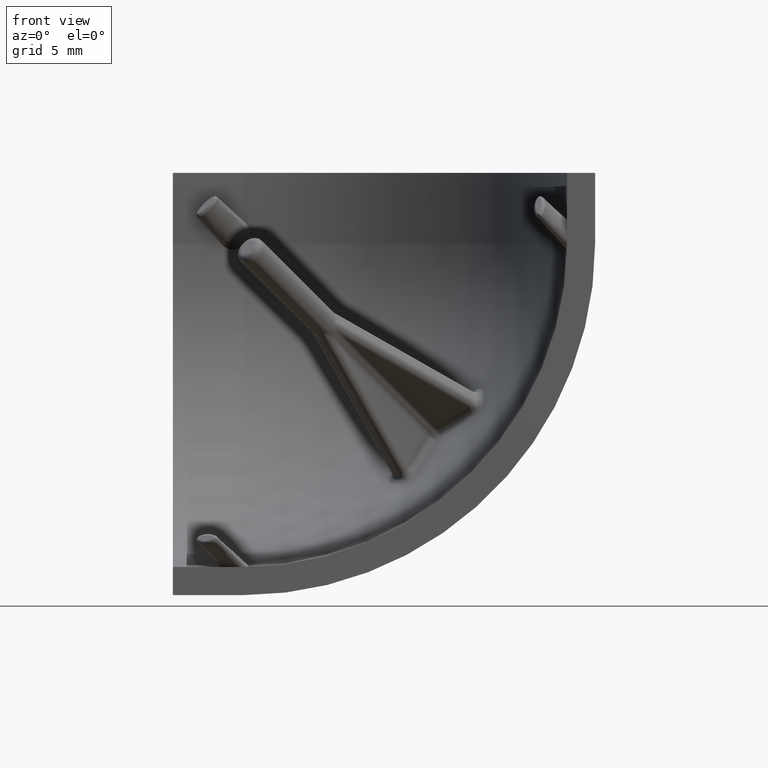
[diagram: clean part render]
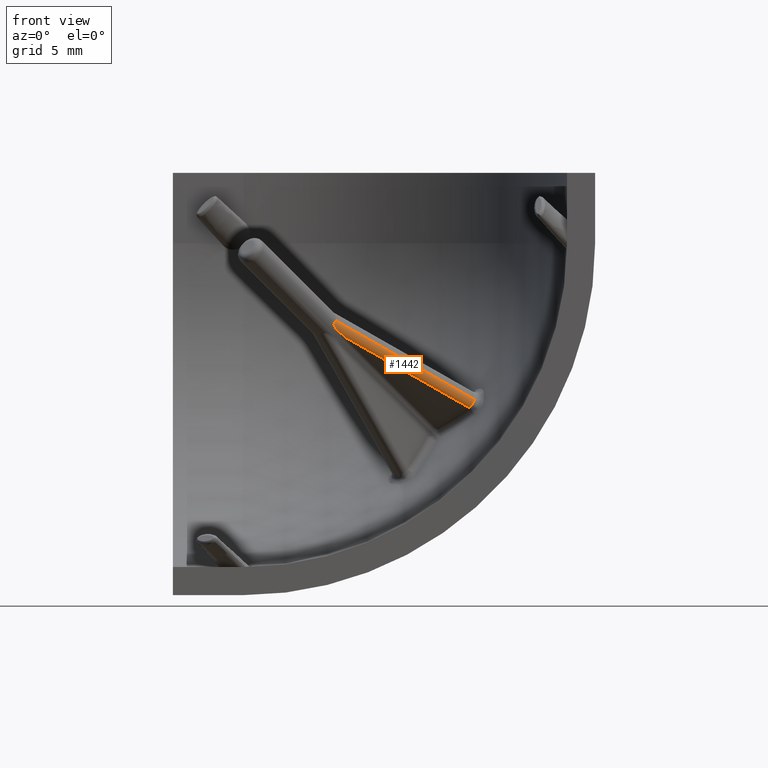
[diagram: same view with one face highlighted and labeled with its STEP entity id]
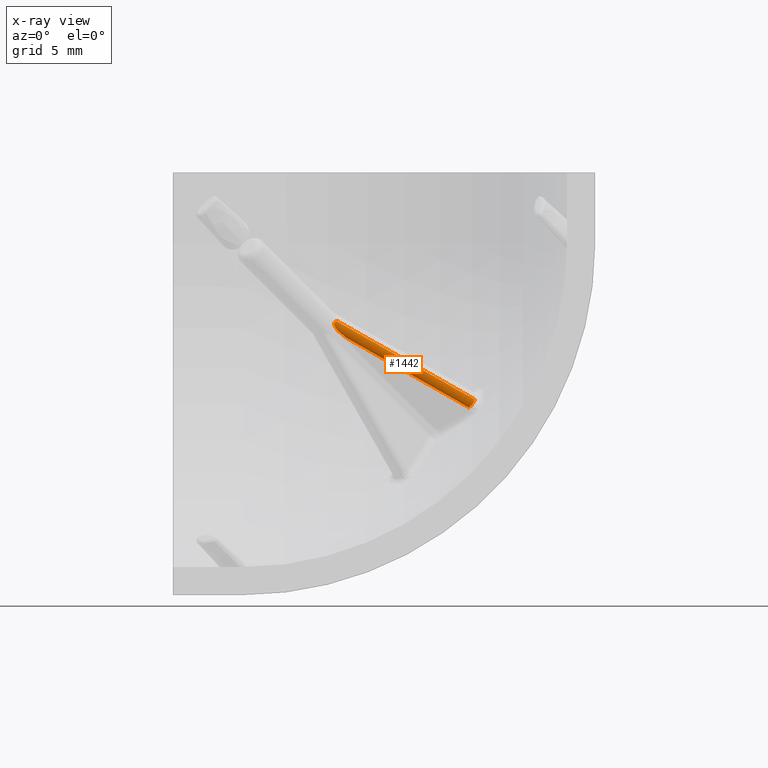
[diagram: x-ray of the same camera — body ghosted, the highlighted face saturated]
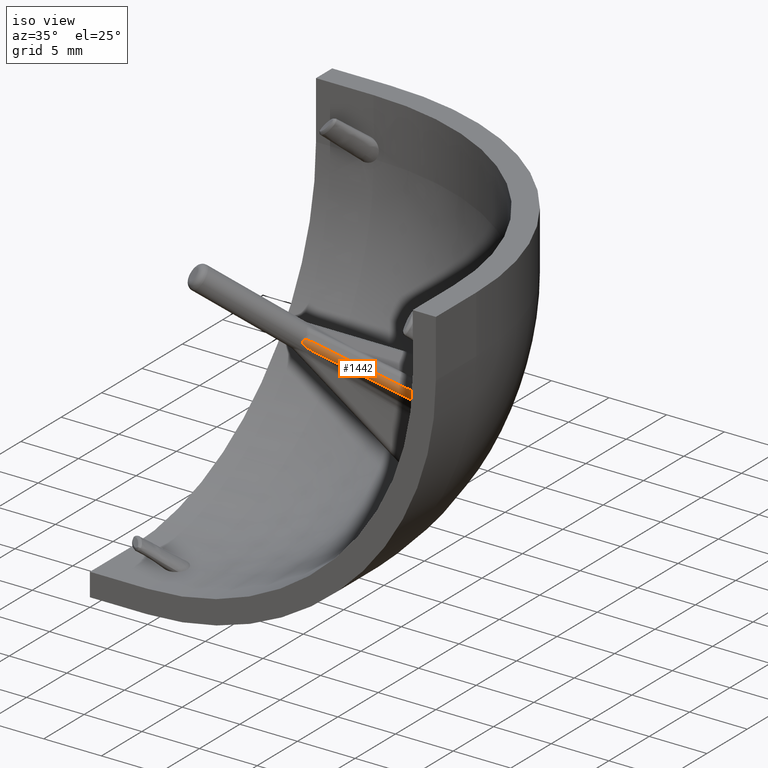
[diagram: same view with one face highlighted and labeled with its STEP entity id]
A machine part, front view. The second image highlights one B-rep face of the part: STEP entity #1442.
The next image is the same camera in x-ray: the body ghosted, the highlighted face saturated — about 0% of this face is hidden behind the body in this view.
A second angle (iso view) of the same face is appended — the face is thin or edge-on in the first view.
In plain terms, the highlighted cylindrical surface (edge-blend (fillet) strip) has radius 0.5 mm, axis along (0.7795, 0.443, -0.443).
Its self-contained STEP definition (entity closure, byte-faithful):
#81=CYLINDRICAL_SURFACE('',#1604,0.5);
#254=FACE_OUTER_BOUND('',#344,.T.);
#344=EDGE_LOOP('',(#1256,#1257,#1258,#1259));
#418=LINE('',#5567,#476);
#420=LINE('',#5575,#478);
#476=VECTOR('',#1854,1000.);
#478=VECTOR('',#1862,1000.);
#555=B_SPLINE_CURVE_WITH_KNOTS('',3,(#6516,#6517,#6518,#6519,#6520,#6521,
#6522,#6523,#6524,#6525,#6526,#6527,#6528,#6529,#6530,#6531,#6532,#6533,
#6534,#6535,#6536,#6537,#6538,#6539,#6540,#6541,#6542,#6543,#6544,#6545,
#6546,#6547,#6548,#6549),.UNSPECIFIED.,.F.,.F.,(4,3,3,3,3,3,3,3,3,3,3,4),
(0.,9.8025656392217E-5,0.000195796310939063,0.000299886190343901,0.000393499916840718,
0.000394948286651213,0.000481508405639693,0.000570780108741295,0.000592323860996276,
0.000680821352220231,0.000762624770073734,0.000789896573302427),
 .UNSPECIFIED.);
#556=B_SPLINE_CURVE_WITH_KNOTS('',3,(#6550,#6551,#6552,#6553,#6554,#6555,
#6556,#6557,#6558,#6559,#6560,#6561,#6562,#6563,#6564,#6565,#6566,#6567,
#6568,#6569,#6570,#6571,#6572,#6573,#6574,#6575,#6576,#6577,#6578,#6579,
#6580,#6581,#6582,#6583,#6584,#6585,#6586,#6587,#6588,#6589,#6590,#6591,
#6592,#6593,#6594,#6595,#6596,#6597,#6598,#6599,#6600,#6601,#6602,#6603,
#6604,#6605,#6606,#6607,#6608,#6609,#6610,#6611,#6612,#6613,#6614,#6615,
#6616,#6617,#6618,#6619,#6620,#6621,#6622,#6623,#6624,#6625,#6626,#6627,
#6628,#6629,#6630,#6631,#6632,#6633,#6634,#6635,#6636,#6637),
 .UNSPECIFIED.,.F.,.F.,(4,3,3,3,3,3,3,3,3,3,3,3,3,3,3,3,3,3,3,3,3,3,3,3,
3,3,3,3,3,4),(0.,0.000255870061475276,0.00047592623255897,0.000585088699030972,
0.00073943014089652,0.000869495139938921,0.00095185246511794,0.00102260959852567,
0.00108510351756164,0.00113891995205674,0.00118981558139743,0.00125594817808944,
0.00132002181147066,0.0013711419787803,0.00142777869767691,0.00146518007393355,
0.0015006844906622,0.00153397402331274,0.00154676025581665,0.00155682988808625,
0.00160070482090831,0.00164857009885532,0.0016657418139564,0.00170180429006746,
0.00171557761805616,0.00175743827274704,0.00180216586440059,0.00184878722337159,
0.00189829630914084,0.00190370493023588),.UNSPECIFIED.);
#683=VERTEX_POINT('',#5558);
#684=VERTEX_POINT('',#5566);
#685=VERTEX_POINT('',#5570);
#687=VERTEX_POINT('',#5573);
#860=EDGE_CURVE('',#683,#684,#418,.T.);
#864=EDGE_CURVE('',#687,#685,#420,.T.);
#895=EDGE_CURVE('',#684,#687,#555,.T.);
#896=EDGE_CURVE('',#685,#683,#556,.T.);
#1256=ORIENTED_EDGE('',*,*,#895,.F.);
#1257=ORIENTED_EDGE('',*,*,#860,.F.);
#1258=ORIENTED_EDGE('',*,*,#896,.F.);
#1259=ORIENTED_EDGE('',*,*,#864,.F.);
#1442=ADVANCED_FACE('',(#254),#81,.T.);
#1604=AXIS2_PLACEMENT_3D('',#6515,#1934,#1935);
#1854=DIRECTION('',(0.779472362645364,0.442957580289611,-0.442957580289611));
#1862=DIRECTION('',(-0.779472362645364,-0.442957580289611,0.442957580289611));
#1934=DIRECTION('center_axis',(0.779472362645364,0.442957580289611,-0.442957580289611));
#1935=DIRECTION('ref_axis',(-0.494073114310574,0.,-0.869420357315982));
#5558=CARTESIAN_POINT('',(11.6360074794578,10.1745347901295,-10.5280881807227));
#5566=CARTESIAN_POINT('',(21.4190989528294,15.7340577885969,-16.0876111791901));
#5567=CARTESIAN_POINT('',(-2.58182565556285,2.09484234141138,-2.44839573200464));
#5570=CARTESIAN_POINT('',(12.3109374908464,10.6581101889243,-11.7187703607041));
#5573=CARTESIAN_POINT('',(21.0192005131779,15.606831018238,-16.6674911900178));
#5575=CARTESIAN_POINT('',(-2.89504396436362,2.01687404750512,-3.07753421928494));
#6515=CARTESIAN_POINT('Origin',(-2.89504396436362,2.37042743809839,-2.72398082869166));
#6516=CARTESIAN_POINT('Ctrl Pts',(21.4190989528294,15.7340577885969,-16.0876111791901));
#6517=CARTESIAN_POINT('Ctrl Pts',(21.4185237954857,15.710288975588,-16.1107262928058));
#6518=CARTESIAN_POINT('Ctrl Pts',(21.4153407821181,15.6881893094259,-16.1352657042595));
#6519=CARTESIAN_POINT('Ctrl Pts',(21.4097264639053,15.6680800761506,-16.1607219124954));
#6520=CARTESIAN_POINT('Ctrl Pts',(21.4041267506597,15.6480231546045,-16.1861118994958));
#6521=CARTESIAN_POINT('Ctrl Pts',(21.3961080798252,15.6299455079086,-16.2124150208626));
#6522=CARTESIAN_POINT('Ctrl Pts',(21.3858096144423,15.6141710548217,-16.2391643502364));
#6523=CARTESIAN_POINT('Ctrl Pts',(21.3748455268566,15.5973770492265,-16.2676425728848));
#6524=CARTESIAN_POINT('Ctrl Pts',(21.3613022985604,15.5832101234894,-16.2966051542425));
#6525=CARTESIAN_POINT('Ctrl Pts',(21.3455552432873,15.5718525579881,-16.3254465689192));
#6526=CARTESIAN_POINT('Ctrl Pts',(21.3313930544761,15.5616380776123,-16.3513852319358));
#6527=CARTESIAN_POINT('Ctrl Pts',(21.3154472445338,15.5536960222228,-16.377227036291));
#6528=CARTESIAN_POINT('Ctrl Pts',(21.2979661918455,15.5481848283325,-16.4025354226691));
#6529=CARTESIAN_POINT('Ctrl Pts',(21.2976957290628,15.548099560422,-16.4029269881388));
#6530=CARTESIAN_POINT('Ctrl Pts',(21.2974248687667,15.5480148722574,-16.4033184624204));
#6531=CARTESIAN_POINT('Ctrl Pts',(21.297153612484,15.5479307638398,-16.4037098437542));
#6532=CARTESIAN_POINT('Ctrl Pts',(21.2809422996411,15.542904123137,-16.427100289056));
#6533=CARTESIAN_POINT('Ctrl Pts',(21.2633957754006,15.5399684403133,-16.4500484013106));
#6534=CARTESIAN_POINT('Ctrl Pts',(21.2448415661227,15.5390797191661,-16.4722185294487));
#6535=CARTESIAN_POINT('Ctrl Pts',(21.2257061272935,15.5381631579215,-16.4950831594884));
#6536=CARTESIAN_POINT('Ctrl Pts',(21.2054977889834,15.5394236222605,-16.5171217385545));
#6537=CARTESIAN_POINT('Ctrl Pts',(21.1845461308571,15.5428565534292,-16.5379588963691));
#6538=CARTESIAN_POINT('Ctrl Pts',(21.1794899112901,15.5436850154842,-16.5429874838168));
#6539=CARTESIAN_POINT('Ctrl Pts',(21.1743903132242,15.5446402020562,-16.5479460118856));
#6540=CARTESIAN_POINT('Ctrl Pts',(21.1692518345023,15.5457224342829,-16.552828994746));
#6541=CARTESIAN_POINT('Ctrl Pts',(21.1481439759355,15.5501680311243,-16.5728873266337));
#6542=CARTESIAN_POINT('Ctrl Pts',(21.1261314037201,15.5568266864692,-16.5918911014685));
#6543=CARTESIAN_POINT('Ctrl Pts',(21.1036477342257,15.5655350886001,-16.6094962746968));
#6544=CARTESIAN_POINT('Ctrl Pts',(21.0828647607754,15.5735847750771,-16.6257697681266));
#6545=CARTESIAN_POINT('Ctrl Pts',(21.0616781411178,15.5833866753806,-16.6408487466414));
#6546=CARTESIAN_POINT('Ctrl Pts',(21.0404420064912,15.5948350409599,-16.65442607926));
#6547=CARTESIAN_POINT('Ctrl Pts',(21.0333622572573,15.5986517222375,-16.6589525202482));
#6548=CARTESIAN_POINT('Ctrl Pts',(21.0262771756794,15.6026515501462,-16.6633117219261));
#6549=CARTESIAN_POINT('Ctrl Pts',(21.019200513178,15.606831018238,-16.6674911900179));
#6550=CARTESIAN_POINT('Ctrl Pts',(12.3109374908464,10.6581101889207,-11.7187703607077));
#6551=CARTESIAN_POINT('Ctrl Pts',(12.2525911203202,10.6139923466591,-11.6746525184461));
#6552=CARTESIAN_POINT('Ctrl Pts',(12.1946828336848,10.5698930870665,-11.6300119250022));
#6553=CARTESIAN_POINT('Ctrl Pts',(12.1374477546199,10.5258566666155,-11.5845280278417));
#6554=CARTESIAN_POINT('Ctrl Pts',(12.0882238154139,10.4879839822661,-11.5454104687283));
#6555=CARTESIAN_POINT('Ctrl Pts',(12.0394978070106,10.4501577254125,-11.5056691780529));
#6556=CARTESIAN_POINT('Ctrl Pts',(11.9914452290304,10.4124145812667,-11.4650851875821));
#6557=CARTESIAN_POINT('Ctrl Pts',(11.9676079609964,10.3936914766745,-11.4449528346595));
#6558=CARTESIAN_POINT('Ctrl Pts',(11.9439647432247,10.3750096452042,-11.4246350101695));
#6559=CARTESIAN_POINT('Ctrl Pts',(11.9205102501576,10.356351740215,-11.4040790411642));
#6560=CARTESIAN_POINT('Ctrl Pts',(11.8873486663715,10.3299719042578,-11.3750155910814));
#6561=CARTESIAN_POINT('Ctrl Pts',(11.8545688757979,10.303639143585,-11.3454688917839));
#6562=CARTESIAN_POINT('Ctrl Pts',(11.8222901456271,10.2773860244223,-11.3151768909955));
#6563=CARTESIAN_POINT('Ctrl Pts',(11.795088553119,10.2552622715437,-11.2896495342084));
#6564=CARTESIAN_POINT('Ctrl Pts',(11.768242944813,10.2331951114329,-11.2635928189123));
#6565=CARTESIAN_POINT('Ctrl Pts',(11.7418470217341,10.2112144698185,-11.2368345290081));
#6566=CARTESIAN_POINT('Ctrl Pts',(11.7251330891895,10.197296299193,-11.2198911453222));
#6567=CARTESIAN_POINT('Ctrl Pts',(11.708594441456,10.183402501164,-11.2026597027892));
#6568=CARTESIAN_POINT('Ctrl Pts',(11.692350896449,10.1696256206583,-11.1851322571449));
#6569=CARTESIAN_POINT('Ctrl Pts',(11.6783952868103,10.1577892409584,-11.1700735868074));
#6570=CARTESIAN_POINT('Ctrl Pts',(11.6646605644468,10.1460431524403,-11.1548044799542));
#6571=CARTESIAN_POINT('Ctrl Pts',(11.6511027853198,10.134340096523,-11.1391638289022));
#6572=CARTESIAN_POINT('Ctrl Pts',(11.6391283212585,10.1240037559486,-11.1253497364787));
#6573=CARTESIAN_POINT('Ctrl Pts',(11.6272916687579,10.1137007154975,-11.1112456190846));
#6574=CARTESIAN_POINT('Ctrl Pts',(11.6155948348803,10.1034192413071,-11.0967342745092));
#6575=CARTESIAN_POINT('Ctrl Pts',(11.6055221445468,10.0945653833507,-11.0842378774705));
#6576=CARTESIAN_POINT('Ctrl Pts',(11.5955532530233,10.085727543406,-11.0714393830358));
#6577=CARTESIAN_POINT('Ctrl Pts',(11.5857150585004,10.0769157749212,-11.0582608866545));
#6578=CARTESIAN_POINT('Ctrl Pts',(11.5764108170263,10.0685822517726,-11.0457976331265));
#6579=CARTESIAN_POINT('Ctrl Pts',(11.5672200382242,10.0602604295128,-11.03297902128));
#6580=CARTESIAN_POINT('Ctrl Pts',(11.5582168578891,10.0520174996212,-11.0197547100753));
#6581=CARTESIAN_POINT('Ctrl Pts',(11.5465183348183,10.0413068282896,-11.002571347756));
#6582=CARTESIAN_POINT('Ctrl Pts',(11.5353506295878,10.0309249377628,-10.9850137862358));
#6583=CARTESIAN_POINT('Ctrl Pts',(11.5249464314274,10.0211031520584,-10.9671257501555));
#6584=CARTESIAN_POINT('Ctrl Pts',(11.5148661561637,10.0115871565002,-10.9497946377684));
#6585=CARTESIAN_POINT('Ctrl Pts',(11.5055025447891,10.0025968531572,-10.9321532991603));
#6586=CARTESIAN_POINT('Ctrl Pts',(11.4971001725471,9.9943768161232,-10.9142499795136));
#6587=CARTESIAN_POINT('Ctrl Pts',(11.4903964685093,9.98781858543929,-10.8999660900658));
#6588=CARTESIAN_POINT('Ctrl Pts',(11.4843052144564,9.98175125294016,-10.8855155895561));
#6589=CARTESIAN_POINT('Ctrl Pts',(11.4789668069992,9.976316097878,-10.8709271344414));
#6590=CARTESIAN_POINT('Ctrl Pts',(11.473052313788,9.97029441669783,-10.854764389385));
#6591=CARTESIAN_POINT('Ctrl Pts',(11.4681895443359,9.96518738783403,-10.8385451565884));
#6592=CARTESIAN_POINT('Ctrl Pts',(11.4644436977162,9.96113811741447,-10.8224293085811));
#6593=CARTESIAN_POINT('Ctrl Pts',(11.4619700406691,9.95846408739513,-10.81178683305));
#6594=CARTESIAN_POINT('Ctrl Pts',(11.4598353188252,9.95607071656078,-10.8004023309679));
#6595=CARTESIAN_POINT('Ctrl Pts',(11.45829005082,9.9542482898466,-10.7885642142736));
#6596=CARTESIAN_POINT('Ctrl Pts',(11.4568231572266,9.95251829475033,-10.7773265147431));
#6597=CARTESIAN_POINT('Ctrl Pts',(11.4558881749735,9.95130379063011,-10.7656809264827));
#6598=CARTESIAN_POINT('Ctrl Pts',(11.4556641523825,9.95083740573893,-10.7538988002643));
#6599=CARTESIAN_POINT('Ctrl Pts',(11.4554541050689,9.95040011549469,-10.7428516824244));
#6600=CARTESIAN_POINT('Ctrl Pts',(11.4558692573564,9.95062104512317,-10.7316854101418));
#6601=CARTESIAN_POINT('Ctrl Pts',(11.4570195380078,9.95166748763627,-10.7206333755977));
#6602=CARTESIAN_POINT('Ctrl Pts',(11.457461351235,9.95206941749857,-10.7163883810883));
#6603=CARTESIAN_POINT('Ctrl Pts',(11.4580111903442,9.95259282474411,-10.712160278491));
#6604=CARTESIAN_POINT('Ctrl Pts',(11.4586736177639,9.95324591182826,-10.7079622817739));
#6605=CARTESIAN_POINT('Ctrl Pts',(11.4591953039227,9.95376024212653,-10.704656203678));
#6606=CARTESIAN_POINT('Ctrl Pts',(11.4597834910005,9.95435159571017,-10.7013918481503));
#6607=CARTESIAN_POINT('Ctrl Pts',(11.4604378749436,9.95502094345008,-10.6981721690365));
#6608=CARTESIAN_POINT('Ctrl Pts',(11.4632891261885,9.95793739425357,-10.6841435331299));
#6609=CARTESIAN_POINT('Ctrl Pts',(11.4673138442544,9.96228636689145,-10.6709100983595));
#6610=CARTESIAN_POINT('Ctrl Pts',(11.4723041593087,9.9678766434311,-10.6585522659788));
#6611=CARTESIAN_POINT('Ctrl Pts',(11.4777483344163,9.97397534542699,-10.6450705112802));
#6612=CARTESIAN_POINT('Ctrl Pts',(11.4843407593021,9.98155090156618,-10.6326315837355));
#6613=CARTESIAN_POINT('Ctrl Pts',(11.4917808529463,9.9903119427275,-10.6213068057863));
#6614=CARTESIAN_POINT('Ctrl Pts',(11.4944499937904,9.99345497478046,-10.6172440306627));
#6615=CARTESIAN_POINT('Ctrl Pts',(11.4972280425762,9.99675024881724,-10.6133243068684));
#6616=CARTESIAN_POINT('Ctrl Pts',(11.5001006967984,10.0001833681829,-10.6095497438679));
#6617=CARTESIAN_POINT('Ctrl Pts',(11.5061335842331,10.0073932935971,-10.60162274955));
#6618=CARTESIAN_POINT('Ctrl Pts',(11.5124751621518,10.0150834071977,-10.5944685823739));
#6619=CARTESIAN_POINT('Ctrl Pts',(11.5189923095911,10.0231061932054,-10.5880069352981));
#6620=CARTESIAN_POINT('Ctrl Pts',(11.5214814012707,10.0261703328593,-10.5855390408515));
#6621=CARTESIAN_POINT('Ctrl Pts',(11.5239964840937,10.0292834008741,-10.5831722617716));
#6622=CARTESIAN_POINT('Ctrl Pts',(11.5265314579641,10.0324385761858,-10.5809024867602));
#6623=CARTESIAN_POINT('Ctrl Pts',(11.5342358897418,10.042027958238,-10.5740040619164));
#6624=CARTESIAN_POINT('Ctrl Pts',(11.5420985097266,10.0519535500222,-10.5679623829367));
#6625=CARTESIAN_POINT('Ctrl Pts',(11.5500628935583,10.0621112581788,-10.5626295147615));
#6626=CARTESIAN_POINT('Ctrl Pts',(11.5585727391502,10.0729646436769,-10.5569314110926));
#6627=CARTESIAN_POINT('Ctrl Pts',(11.5671988573449,10.0840831948141,-10.5520425657728));
#6628=CARTESIAN_POINT('Ctrl Pts',(11.5758970147101,10.0953807103799,-10.5478190529346));
#6629=CARTESIAN_POINT('Ctrl Pts',(11.5849634522694,10.1071565630293,-10.5434167164602));
#6630=CARTESIAN_POINT('Ctrl Pts',(11.5941083694681,10.1191272194768,-10.539737442467));
#6631=CARTESIAN_POINT('Ctrl Pts',(11.603304962874,10.1312334538267,-10.5366545870924));
#6632=CARTESIAN_POINT('Ctrl Pts',(11.6130711932406,10.1440895482864,-10.5333807796675));
#6633=CARTESIAN_POINT('Ctrl Pts',(11.6228958692168,10.1570988343075,-10.5307796643188));
#6634=CARTESIAN_POINT('Ctrl Pts',(11.6327696695927,10.1702276595975,-10.5287374841404));
#6635=CARTESIAN_POINT('Ctrl Pts',(11.6338483331182,10.1716619183869,-10.5285143861247));
#6636=CARTESIAN_POINT('Ctrl Pts',(11.6349276025035,10.1730976356823,-10.5282979929173));
#6637=CARTESIAN_POINT('Ctrl Pts',(11.6360074794578,10.1745347901295,-10.5280881807227));